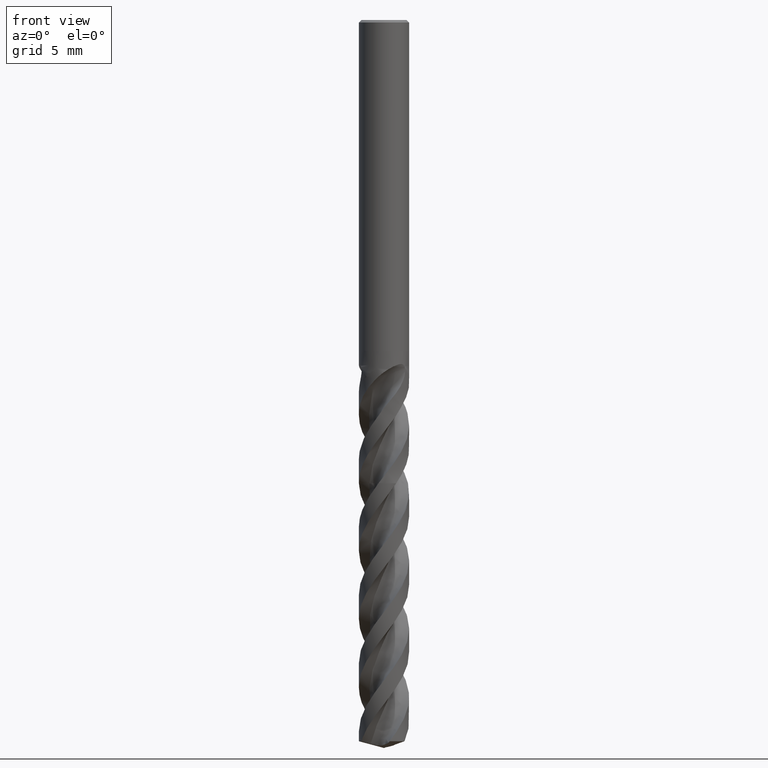
[diagram: clean part render]
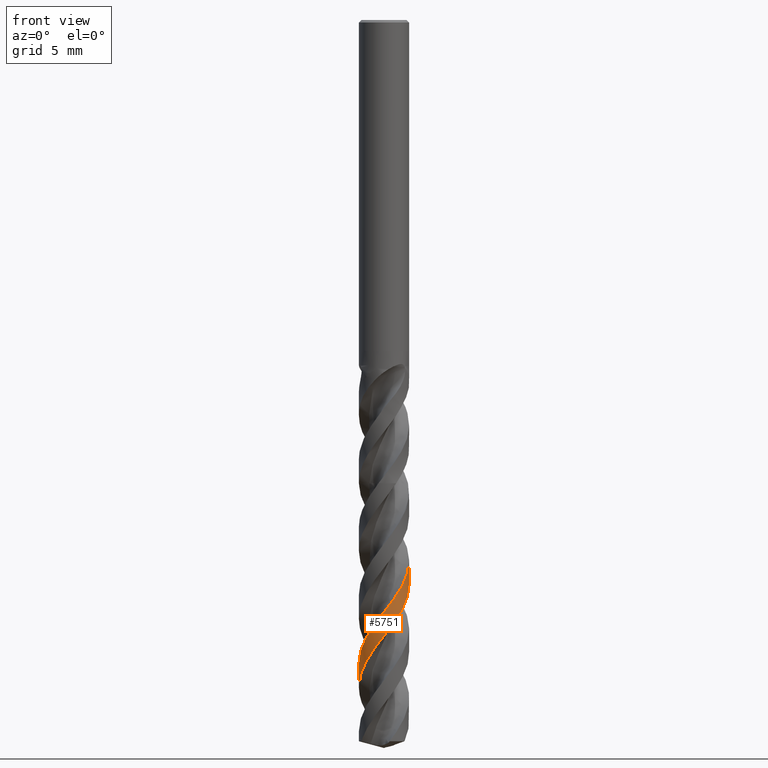
[diagram: same view with one face highlighted and labeled with its STEP entity id]
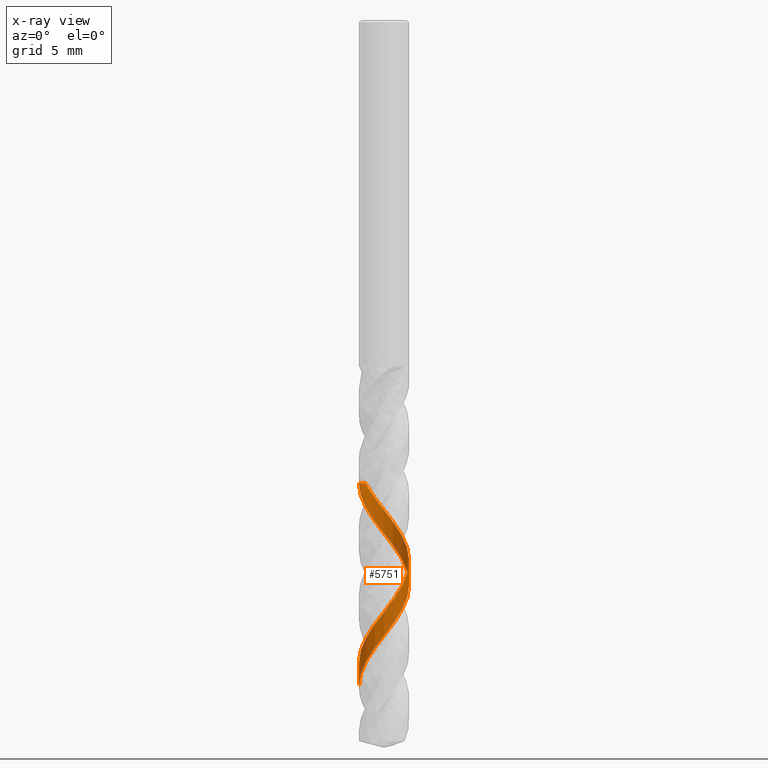
[diagram: x-ray of the same camera — body ghosted, the highlighted face saturated]
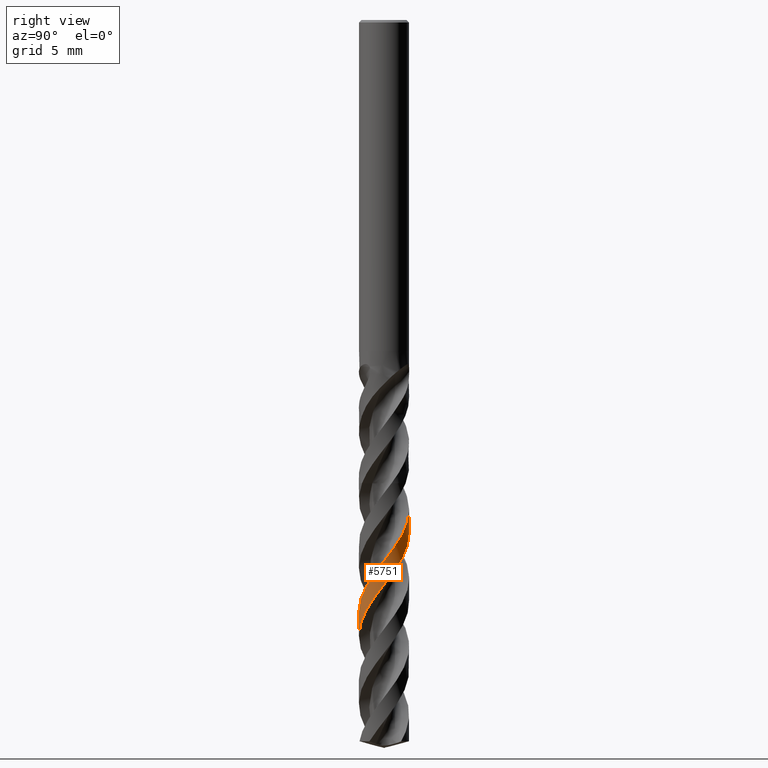
[diagram: same view with one face highlighted and labeled with its STEP entity id]
A machine part, front view. The second image highlights one B-rep face of the part: STEP entity #5751.
The next image is the same camera in x-ray: the body ghosted, the highlighted face saturated — about 0% of this face is hidden behind the body in this view.
A second angle (right view) of the same face is appended — the face is thin or edge-on in the first view.
In plain terms, the highlighted face is a freeform B-spline surface patch.
Its self-contained STEP definition (entity closure, byte-faithful):
#3483 = VERTEX_POINT('', #3484);
#3484 = CARTESIAN_POINT('', (-1.39811417860882, 1.28657558797492, -35.));
#3490 = EDGE_CURVE('', #3491, #3483, #3493, .T.);
#3491 = VERTEX_POINT('', #3492);
#3492 = CARTESIAN_POINT('', (-1.89974373477414, 0.0312045892812388, -34.9999999998437));
#3493 = CIRCLE('', #3494, 1.9);
#3494 = AXIS2_PLACEMENT_3D('', #3495, #3496, #3497);
#3495 = CARTESIAN_POINT('', (1.31228980982913E-31, 2.14313189850787E-15, -35.));
#3496 = DIRECTION('', (3.74939945665464E-33, 6.12323399573677E-17, -1.));
#3497 = DIRECTION('', (-1., 6.12323399573677E-17, 0.));
#5280 = EDGE_CURVE('', #5281, #3491, #5283, .T.);
#5281 = VERTEX_POINT('', #5282);
#5282 = CARTESIAN_POINT('', (-1.9, 3.20183785493939E-15, -50.3899803791368));
#5283 = B_SPLINE_CURVE_WITH_KNOTS('', 3, (#5284, #5285, #5286, #5287, #5288, #5289, #5290, #5291, #5292, #5293, #5294, #5295, #5296, #5297, #5298, #5299, #5300, #5301, #5302, #5303, #5304, #5305, #5306, #5307, #5308, #5309, #5310, #5311, #5312, #5313, #5314, #5315, #5316, #5317, #5318, #5319, #5320, #5321, #5322, #5323, #5324, #5325, #5326, #5327, #5328, #5329, #5330, #5331, #5332, #5333, #5334, #5335, #5336, #5337, #5338, #5339, #5340, #5341, #5342, #5343, #5344, #5345, #5346, #5347, #5348, #5349, #5350, #5351, #5352, #5353, #5354, #5355, #5356, #5357, #5358, #5359, #5360, #5361, #5362, #5363, #5364, #5365, #5366, #5367, #5368, #5369, #5370, #5371, #5372, #5373, #5374, #5375, #5376, #5377, #5378, #5379, #5380, #5381, #5382, #5383, #5384, #5385, #5386, #5387, #5388, #5389, #5390, #5391, #5392, #5393, #5394, #5395, #5396, #5397, #5398, #5399, #5400, #5401, #5402, #5403, #5404, #5405, #5406, #5407, #5408, #5409, #5410, #5411, #5412, #5413, #5414, #5415, #5416, #5417, #5418, #5419, #5420, #5421, #5422, #5423, #5424, #5425, #5426, #5427, #5428, #5429, #5430, #5431, #5432, #5433, #5434, #5435, #5436, #5437, #5438, #5439, #5440, #5441, #5442, #5443, #5444, #5445, #5446, #5447, #5448, #5449, #5450, #5451, #5452, #5453, #5454, #5455, #5456, #5457, #5458, #5459, #5460, #5461, #5462, #5463, #5464, #5465, #5466, #5467, #5468, #5469, #5470, #5471, #5472, #5473, #5474, #5475, #5476, #5477, #5478, #5479, #5480, #5481, #5482, #5483, #5484, #5485, #5486, #5487, #5488, #5489, #5490, #5491, #5492, #5493, #5494, #5495, #5496, #5497), .UNSPECIFIED., .F., .U., (4, 3, 3, 3, 3, 3, 3, 3, 3, 3, 3, 3, 3, 3, 3, 3, 3, 3, 3, 3, 3, 3, 3, 3, 3, 3, 3, 3, 3, 3, 3, 3, 3, 3, 3, 3, 3, 3, 3, 3, 3, 3, 3, 3, 3, 3, 3, 3, 3, 3, 3, 3, 3, 3, 3, 3, 3, 3, 3, 3, 3, 3, 3, 3, 3, 3, 3, 3, 3, 3, 3, 4), (0., 0.296597883397819, 0.593047555842325, 0.889354802472602, 1.18552446057521, 1.48156052446931, 1.77746622766253, 2.07324410628319, 2.36889604675509, 2.66442331988133, 2.95982660286872, 3.25510599180677, 3.55026105248241, 3.84529082581789, 4.14019376941951, 4.43496772691302, 4.72960988498536, 4.86077255606335, 4.89968474925953, 5.19627638119132, 5.4927196811879, 5.78902039594951, 6.08518332677794, 6.38121243366968, 6.67711091678459, 6.97288127925713, 7.26852537428579, 7.56404443864139, 7.85943911425807, 8.15470947126052, 8.44985506240897, 8.74487488113444, 9.03976733359273, 9.33453020705703, 9.62916062583236, 9.76032080227562, 9.84798921662365, 10.1445478451883, 10.4409590837638, 10.7372284597297, 11.0333605820444, 11.3293592397402, 11.6252274792756, 11.9209676638771, 12.2165815176204, 12.5120701562464, 12.8074341061006, 13.1026733122776, 13.3977871491565, 13.6927744491314, 13.9876334561822, 14.2823617877787, 14.5769563873929, 14.6353002366761, 14.693726391582, 14.9903020270279, 15.2867292206948, 15.5830136217124, 15.8791599408288, 16.1751720522427, 16.4710530731201, 16.7668054246582, 17.062430877551, 17.3579305844418, 17.6533051192015, 17.9485545075566, 18.2436782122128, 18.5386751213256, 18.8335435262081, 19.1282810873866, 19.4228847877609, 19.4555960733218), .UNSPECIFIED.);
#5284 = CARTESIAN_POINT('', (-1.9, 3.11249959592658E-15, -50.3899803791368));
#5285 = CARTESIAN_POINT('', (-1.9, -0.0603973466120437, -50.3117075307608));
#5286 = CARTESIAN_POINT('', (-1.89711632268117, -0.1208216689266, -50.2334025913672));
#5287 = CARTESIAN_POINT('', (-1.89136404808751, -0.180947610103469, -50.1551321575798));
#5288 = CARTESIAN_POINT('', (-1.88561464792468, -0.241043506146642, -50.0769008357897));
#5289 = CARTESIAN_POINT('', (-1.87699470840892, -0.300891692167137, -49.9986373507355));
#5290 = CARTESIAN_POINT('', (-1.86555012531124, -0.36017041792916, -49.9204084160486));
#5291 = CARTESIAN_POINT('', (-1.85411104063105, -0.419420663913439, -49.842217065548));
#5292 = CARTESIAN_POINT('', (-1.83984048069851, -0.47815146078953, -49.7639935554103));
#5293 = CARTESIAN_POINT('', (-1.82281464527603, -0.536047357019148, -49.6858045681515));
#5294 = CARTESIAN_POINT('', (-1.80579671570013, -0.593916369629784, -49.6076518874891));
#5295 = CARTESIAN_POINT('', (-1.78601186735749, -0.650999545767201, -49.529467114124));
#5296 = CARTESIAN_POINT('', (-1.76356586798093, -0.706990402546371, -49.4513167775194));
#5297 = CARTESIAN_POINT('', (-1.74112999339413, -0.762956003348128, -49.3732016924406));
#5298 = CARTESIAN_POINT('', (-1.71601659716161, -0.817877080812481, -49.2950546287063));
#5299 = CARTESIAN_POINT('', (-1.68836004285437, -0.871458757310289, -49.2169418742678));
#5300 = CARTESIAN_POINT('', (-1.6607156672248, -0.92501683889601, -49.1388635171027));
#5301 = CARTESIAN_POINT('', (-1.63050714578583, -0.977281684095713, -49.0607533225109));
#5302 = CARTESIAN_POINT('', (-1.59789621593187, -1.02797260815189, -48.9826772894592));
#5303 = CARTESIAN_POINT('', (-1.5652993732622, -1.07864163487512, -48.9046349834883));
#5304 = CARTESIAN_POINT('', (-1.53027467659035, -1.12778086594785, -48.8265609847222));
#5305 = CARTESIAN_POINT('', (-1.49300975053711, -1.17512632716705, -48.748521004388));
#5306 = CARTESIAN_POINT('', (-1.45576069137635, -1.22245162934066, -48.6705142524031));
#5307 = CARTESIAN_POINT('', (-1.41624173307592, -1.2680248004805, -48.5924759279151));
#5308 = CARTESIAN_POINT('', (-1.37466462191501, -1.3116009977334, -48.5144715123355));
#5309 = CARTESIAN_POINT('', (-1.33310504254529, -1.35515882024188, -48.436499988823));
#5310 = CARTESIAN_POINT('', (-1.2894537506212, -1.39675834531309, -48.3584969569361));
#5311 = CARTESIAN_POINT('', (-1.2439445568901, -1.43617615193384, -48.2805277910749));
#5312 = CARTESIAN_POINT('', (-1.19845445679862, -1.47557742059088, -48.2025913376182));
#5313 = CARTESIAN_POINT('', (-1.15106946537053, -1.51283220077472, -48.124623347721));
#5314 = CARTESIAN_POINT('', (-1.10204309966219, -1.54774061343848, -48.0466892849099));
#5315 = CARTESIAN_POINT('', (-1.05303729592904, -1.58263438528798, -47.9687879081492));
#5316 = CARTESIAN_POINT('', (-1.00235025844945, -1.61521313671231, -47.8908548778824));
#5317 = CARTESIAN_POINT('', (-0.950252688659541, -1.64530235145255, -47.8129558984737));
#5318 = CARTESIAN_POINT('', (-0.898177054705898, -1.6753788970397, -47.7350897186612));
#5319 = CARTESIAN_POINT('', (-0.844648617808613, -1.70299311557896, -47.6571917805136));
#5320 = CARTESIAN_POINT('', (-0.789952808119395, -1.72799726878959, -47.5793279703746));
#5321 = CARTESIAN_POINT('', (-0.735280215692649, -1.75299080824404, -47.5014972118445));
#5322 = CARTESIAN_POINT('', (-0.679395844214057, -1.77539725731334, -47.4236346714647));
#5323 = CARTESIAN_POINT('', (-0.62259740278839, -1.79509678681712, -47.3458062580193));
#5324 = CARTESIAN_POINT('', (-0.565823378326233, -1.81478784773126, -47.2680113020681));
#5325 = CARTESIAN_POINT('', (-0.508088987332954, -1.83179064589652, -47.1901846105349));
#5326 = CARTESIAN_POINT('', (-0.449701659736578, -1.84601419746171, -47.1123919793799));
#5327 = CARTESIAN_POINT('', (-0.391339869878339, -1.86023152785957, -47.0346333735507));
#5328 = CARTESIAN_POINT('', (-0.332277230224785, -1.87168384951152, -46.9568431325556));
#5329 = CARTESIAN_POINT('', (-0.272828226239173, -1.88030975080366, -46.8790868367873));
#5330 = CARTESIAN_POINT('', (-0.213405803110234, -1.8889317952802, -46.8013653074374));
#5331 = CARTESIAN_POINT('', (-0.153547806930072, -1.89473713027989, -46.7236122775974));
#5332 = CARTESIAN_POINT('', (-0.093573009370634, -1.89769441478802, -46.6458930504269));
#5333 = CARTESIAN_POINT('', (-0.0668746757149105, -1.89901087723102, -46.6112956204579));
#5334 = CARTESIAN_POINT('', (-0.0401459855887426, -1.89976389798682, -46.5766955788446));
#5335 = CARTESIAN_POINT('', (-0.0134152424320742, -1.89995263921775, -46.5420986425517));
#5336 = CARTESIAN_POINT('', (-0.0054849995249945, -1.9000086333141, -46.5318347263173));
#5337 = CARTESIAN_POINT('', (0.00244567702330259, -1.90001497659861, -46.5215707541682));
#5338 = CARTESIAN_POINT('', (0.010376046464451, -1.89997166759395, -46.5113068743352));
#5339 = CARTESIAN_POINT('', (0.0708219124302595, -1.8996415631379, -46.4330748185295));
#5340 = CARTESIAN_POINT('', (0.131279019773841, -1.89642294998161, -46.354810529619));
#5341 = CARTESIAN_POINT('', (0.191421314641239, -1.89033274327594, -46.2765808678068));
#5342 = CARTESIAN_POINT('', (0.251533531037008, -1.88424558241529, -46.1983903303524));
#5343 = CARTESIAN_POINT('', (0.311381762324105, -1.87528459199328, -46.1201675322566));
#5344 = CARTESIAN_POINT('', (0.370643635672597, -1.86349759735166, -46.041979365893));
#5345 = CARTESIAN_POINT('', (0.429877004858116, -1.85171627209573, -45.9638288069844));
#5346 = CARTESIAN_POINT('', (0.488574243087134, -1.83710178492602, -45.8856460215988));
#5347 = CARTESIAN_POINT('', (0.546419398961808, -1.819732354067, -45.807497814191));
#5348 = CARTESIAN_POINT('', (0.604237656038421, -1.80237100023372, -45.7293859467812));
#5349 = CARTESIAN_POINT('', (0.661253130909745, -1.78224269652014, -45.6512419371889));
#5350 = CARTESIAN_POINT('', (0.717159007714757, -1.75945530140824, -45.5731324060725));
#5351 = CARTESIAN_POINT('', (0.773039622936567, -1.73667820298984, -45.4950581694642));
#5352 = CARTESIAN_POINT('', (0.82785865619203, -1.7112252476001, -45.4169519098412));
#5353 = CARTESIAN_POINT('', (0.881321102058187, -1.68323293547475, -45.3388799998108));
#5354 = CARTESIAN_POINT('', (0.934759957451533, -1.65525297504538, -45.2608425392569));
#5355 = CARTESIAN_POINT('', (0.986888563036032, -1.62471225644273, -45.182773190664));
#5356 = CARTESIAN_POINT('', (1.03742634248768, -1.59177466492988, -45.1047380536134));
#5357 = CARTESIAN_POINT('', (1.08794223966166, -1.55885133501559, -45.0267367048803));
#5358 = CARTESIAN_POINT('', (1.13691153699143, -1.52350527461663, -44.9487035958913));
#5359 = CARTESIAN_POINT('', (1.18407062760262, -1.48592622591054, -44.8707045754155));
#5360 = CARTESIAN_POINT('', (1.23120958550755, -1.44836322009117, -44.7927388535326));
#5361 = CARTESIAN_POINT('', (1.27657998597992, -1.4085371721579, -44.714741464921));
#5362 = CARTESIAN_POINT('', (1.31993762582499, -1.3666618689096, -44.636778085106));
#5363 = CARTESIAN_POINT('', (1.36327692931569, -1.32480427512156, -44.5588476767388));
#5364 = CARTESIAN_POINT('', (1.40464205834341, -1.28086354078426, -44.4808856296528));
#5365 = CARTESIAN_POINT('', (1.44381050747631, -1.23507538980461, -44.4029575874892));
#5366 = CARTESIAN_POINT('', (1.48296246997744, -1.18930651179595, -44.325062346495));
#5367 = CARTESIAN_POINT('', (1.51995279622494, -1.14165298424475, -44.2471354029841));
#5368 = CARTESIAN_POINT('', (1.55458277159442, -1.09237008667476, -44.1692425551454));
#5369 = CARTESIAN_POINT('', (1.58919817273184, -1.04310793010667, -44.0913824889772));
#5370 = CARTESIAN_POINT('', (1.6214843399657, -0.992176340874723, -44.0134906102073));
#5371 = CARTESIAN_POINT('', (1.65126807967806, -0.939847715875464, -43.9356329206462));
#5372 = CARTESIAN_POINT('', (1.68103923433529, -0.887541202224097, -43.8578081296842));
#5373 = CARTESIAN_POINT('', (1.70833497175356, -0.833795108919408, -43.7799514725449));
#5374 = CARTESIAN_POINT('', (1.73300899264645, -0.778896547306844, -43.7021290353297));
#5375 = CARTESIAN_POINT('', (1.75767249902894, -0.724021379996346, -43.6243397611256));
#5376 = CARTESIAN_POINT('', (1.77973708298927, -0.66794898834522, -43.5465186333979));
#5377 = CARTESIAN_POINT('', (1.79908449563749, -0.610978704667201, -43.4687316928673));
#5378 = CARTESIAN_POINT('', (1.81842355560033, -0.554033016260116, -43.3909783345967));
#5379 = CARTESIAN_POINT('', (1.83506390886026, -0.496142743036781, -43.3131931911206));
#5380 = CARTESIAN_POINT('', (1.84891630625917, -0.437616832913239, -43.2354421504763));
#5381 = CARTESIAN_POINT('', (1.86276261676198, -0.379116639719694, -43.1577252744962));
#5382 = CARTESIAN_POINT('', (1.87383498606089, -0.319932487403543, -43.0799767225228));
#5383 = CARTESIAN_POINT('', (1.88207389285434, -0.260380225509291, -43.0022621534353));
#5384 = CARTESIAN_POINT('', (1.8903090974114, -0.200854724028363, -42.9245825061782));
#5385 = CARTESIAN_POINT('', (1.89572028682086, -0.140911517679723, -42.8468713138857));
#5386 = CARTESIAN_POINT('', (1.89827815552437, -0.0808705401203072, -42.7691939694406));
#5387 = CARTESIAN_POINT('', (1.89941683805371, -0.0541421892485537, -42.7346144638844));
#5388 = CARTESIAN_POINT('', (1.89999096742588, -0.0273872123462829, -42.7000323333456));
#5389 = CARTESIAN_POINT('', (1.89999989422989, -0.000633976647764424, -42.6654533246451));
#5390 = CARTESIAN_POINT('', (1.90000586097052, 0.0172480803604663, -42.6423404641359));
#5391 = CARTESIAN_POINT('', (1.89975934999109, 0.0351310202751385, -42.619226842983));
#5392 = CARTESIAN_POINT('', (1.89926046827714, 0.0530063547105378, -42.5961141656127));
#5393 = CARTESIAN_POINT('', (1.89757288583362, 0.113473795632336, -42.5179302044406));
#5394 = CARTESIAN_POINT('', (1.8929930163899, 0.173887824555277, -42.4397140686018));
#5395 = CARTESIAN_POINT('', (1.88554518410402, 0.233921693526354, -42.3615325138635));
#5396 = CARTESIAN_POINT('', (1.87810105339959, 0.293925725593551, -42.2833898154504));
#5397 = CARTESIAN_POINT('', (1.8677855116327, 0.353600840421559, -42.2052148605735));
#5398 = CARTESIAN_POINT('', (1.854653810658, 0.41262482064437, -42.127074547996));
#5399 = CARTESIAN_POINT('', (1.84152839452384, 0.471620551952225, -42.0489716334224));
#5400 = CARTESIAN_POINT('', (1.82557845142151, 0.530015528203547, -41.970836438534));
#5401 = CARTESIAN_POINT('', (1.80688955170894, 0.587494806721798, -41.8927358899143));
#5402 = CARTESIAN_POINT('', (1.78820931006206, 0.644947456632856, -41.814671523183));
#5403 = CARTESIAN_POINT('', (1.76677693109782, 0.701533606339098, -41.7365749063166));
#5404 = CARTESIAN_POINT('', (1.74270746384052, 0.756948277938834, -41.6585128881489));
#5405 = CARTESIAN_POINT('', (1.7186488445191, 0.812337974544385, -41.5804860519718));
#5406 = CARTESIAN_POINT('', (1.69193525821193, 0.866603878376434, -41.502427040864));
#5407 = CARTESIAN_POINT('', (1.66271015806483, 0.919453604195458, -41.4244025394572));
#5408 = CARTESIAN_POINT('', (1.63349793461058, 0.972280044219639, -41.3464124159495));
#5409 = CARTESIAN_POINT('', (1.60175175666716, 1.02373612788652, -41.2683902249394));
#5410 = CARTESIAN_POINT('', (1.56764216595529, 1.07354461459177, -41.1904024271558));
#5411 = CARTESIAN_POINT('', (1.53354733823858, 1.12333154365203, -41.112448383324));
#5412 = CARTESIAN_POINT('', (1.49706226891174, 1.17151445603243, -41.034462394904));
#5413 = CARTESIAN_POINT('', (1.45838302382443, 1.21783371435542, -40.9565106736921));
#5414 = CARTESIAN_POINT('', (1.41972030128793, 1.26413318655545, -40.8785922509913));
#5415 = CARTESIAN_POINT('', (1.37883241716875, 1.30860994004486, -40.8006420012783));
#5416 = CARTESIAN_POINT('', (1.33593913955862, 1.35102428379189, -40.7227259052745));
#5417 = CARTESIAN_POINT('', (1.29306403053808, 1.39342066181451, -40.6448428127073));
#5418 = CARTESIAN_POINT('', (1.24814869545133, 1.43379249762829, -40.5669279803073));
#5419 = CARTESIAN_POINT('', (1.20143451730405, 1.47192224680191, -40.4890472269804));
#5420 = CARTESIAN_POINT('', (1.15474005136476, 1.51003590618062, -40.4111993373722));
#5421 = CARTESIAN_POINT('', (1.10620847429145, 1.545941849899, -40.333319735265));
#5422 = CARTESIAN_POINT('', (1.05610042514765, 1.57944670438827, -40.2554742072386));
#5423 = CARTESIAN_POINT('', (1.00601353858078, 1.6129374084751, -40.1776615564046));
#5424 = CARTESIAN_POINT('', (0.954308995875691, 1.64405749134188, -40.0998171385695));
#5425 = CARTESIAN_POINT('', (0.901264099184257, 1.67263953783282, -40.0220068715774));
#5426 = CARTESIAN_POINT('', (0.848241727283987, 1.70120944734795, -39.9442296456528));
#5427 = CARTESIAN_POINT('', (0.7938354326233, 1.72726757797137, -39.8664205625453));
#5428 = CARTESIAN_POINT('', (0.738336567968501, 1.75067390235889, -39.7886457046229));
#5429 = CARTESIAN_POINT('', (0.68286149973947, 1.77407019074181, -39.7109041944752));
#5430 = CARTESIAN_POINT('', (0.626248272057943, 1.79483657651667, -39.633130788486));
#5431 = CARTESIAN_POINT('', (0.568799719544611, 1.81286151678665, -39.5553916268778));
#5432 = CARTESIAN_POINT('', (0.511376151980751, 1.83087861783002, -39.4776862748077));
#5433 = CARTESIAN_POINT('', (0.453069948291436, 1.84617173260294, -39.3999490449136));
#5434 = CARTESIAN_POINT('', (0.394192782023243, 1.85865866974032, -39.322246023896));
#5435 = CARTESIAN_POINT('', (0.335341708905565, 1.8711400729237, -39.244577439261));
#5436 = CARTESIAN_POINT('', (0.27587094616494, 1.88082822585693, -39.1668770435323));
#5437 = CARTESIAN_POINT('', (0.216098280649952, 1.88767092818117, -39.089210775733));
#5438 = CARTESIAN_POINT('', (0.156352736779505, 1.8945105256524, -39.0115797487397));
#5439 = CARTESIAN_POINT('', (0.0962554809827234, 1.89851298407689, -38.9339170137342));
#5440 = CARTESIAN_POINT('', (0.0361276113045001, 1.89965649413306, -38.8562882939799));
#5441 = CARTESIAN_POINT('', (0.0242194114569041, 1.89988296392734, -38.8409140870823));
#5442 = CARTESIAN_POINT('', (0.0123088194006457, 1.89999746118686, -38.8255396757848));
#5443 = CARTESIAN_POINT('', (0.000398338919437425, 1.89999995824371, -38.8101655677333));
#5444 = CARTESIAN_POINT('', (-0.0115289436673, 1.90000245882317, -38.7947697714395));
#5445 = CARTESIAN_POINT('', (-0.0234565105444414, 1.89989264302796, -38.7793737675083));
#5446 = CARTESIAN_POINT('', (-0.0353818442833437, 1.89967053066976, -38.7639780635299));
#5447 = CARTESIAN_POINT('', (-0.0959157513531112, 1.89854307133445, -38.6858282914303));
#5448 = CARTESIAN_POINT('', (-0.156422866371739, 1.89451784944092, -38.6076460655249));
#5449 = CARTESIAN_POINT('', (-0.2165756917128, 1.88761621357712, -38.529498660099));
#5450 = CARTESIAN_POINT('', (-0.27669840941406, 1.8807180321141, -38.4513903689445));
#5451 = CARTESIAN_POINT('', (-0.336518085431246, 1.87094047784981, -38.3732496705937));
#5452 = CARTESIAN_POINT('', (-0.395711163761303, 1.85833599622746, -38.29514373126));
#5453 = CARTESIAN_POINT('', (-0.454875728052643, 1.84573758633997, -38.2170754165243));
#5454 = CARTESIAN_POINT('', (-0.513464413320335, 1.83030429908284, -38.1389747775055));
#5455 = CARTESIAN_POINT('', (-0.571160433877697, 1.81211913481776, -38.0609088029862));
#5456 = CARTESIAN_POINT('', (-0.62882956548585, 1.79394244565986, -37.9828792107339));
#5457 = CARTESIAN_POINT('', (-0.685655821514685, 1.7730010093833, -37.9048174019483));
#5458 = CARTESIAN_POINT('', (-0.741331983902199, 1.74940758248146, -37.8267901427047));
#5459 = CARTESIAN_POINT('', (-0.796982914945088, 1.72582484765788, -37.7487982438844));
#5460 = CARTESIAN_POINT('', (-0.851532183927844, 1.69957243884957, -37.6707742456904));
#5461 = CARTESIAN_POINT('', (-0.904684890099271, 1.67079180319574, -37.5927846782643));
#5462 = CARTESIAN_POINT('', (-0.957814057312325, 1.64202391319935, -37.5148296489325));
#5463 = CARTESIAN_POINT('', (-1.00959327659233, 1.61070546036818, -37.4368426272564));
#5464 = CARTESIAN_POINT('', (-1.05974264625351, 1.57700523896137, -37.3588899345419));
#5465 = CARTESIAN_POINT('', (-1.10987020753295, 1.54331967271969, -37.2809711409989));
#5466 = CARTESIAN_POINT('', (-1.15841222917946, 1.50722558473127, -37.2030204282001));
#5467 = CARTESIAN_POINT('', (-1.20510639709955, 1.4689174829342, -37.1251039846276));
#5468 = CARTESIAN_POINT('', (-1.25178052992397, 1.43062581801819, -37.0472209727119));
#5469 = CARTESIAN_POINT('', (-1.2966483054024, 1.39008930215621, -36.9693060524489));
#5470 = CARTESIAN_POINT('', (-1.33946746132309, 1.3475262224004, -36.8914254133276));
#5471 = CARTESIAN_POINT('', (-1.38226840386731, 1.30498124709757, -36.8135779011881));
#5472 = CARTESIAN_POINT('', (-1.42305891670236, 1.26037521648839, -36.7356984215243));
#5473 = CARTESIAN_POINT('', (-1.4616190323304, 1.21394802373477, -36.6578532931714));
#5474 = CARTESIAN_POINT('', (-1.50016281409503, 1.1675404972973, -36.580041139608));
#5475 = CARTESIAN_POINT('', (-1.536510715687, 1.11927408197368, -36.50219695));
#5476 = CARTESIAN_POINT('', (-1.57046696000731, 1.06940802667896, -36.4243871635594));
#5477 = CARTESIAN_POINT('', (-1.60440881750212, 1.01956309899275, -36.3466103441279));
#5478 = CARTESIAN_POINT('', (-1.63598965155237, 0.968077885378921, -36.2688014696178));
#5479 = CARTESIAN_POINT('', (-1.66503948287526, 0.915228671134437, -36.1910270007931));
#5480 = CARTESIAN_POINT('', (-1.69407694807515, 0.862401954090591, -36.1132856395151));
#5481 = CARTESIAN_POINT('', (-1.7206099913949, 0.808167963411289, -36.0355122516039));
#5482 = CARTESIAN_POINT('', (-1.74449583208207, 0.752817568769679, -35.9577732260125));
#5483 = CARTESIAN_POINT('', (-1.76837141057036, 0.697490954608104, -35.8800675998459));
#5484 = CARTESIAN_POINT('', (-1.7896221490438, 0.641002341845887, -35.802330016331));
#5485 = CARTESIAN_POINT('', (-1.80813365148061, 0.583654605381844, -35.724626713823));
#5486 = CARTESIAN_POINT('', (-1.82663709008252, 0.526331850287105, -35.6469572598156));
#5487 = CARTESIAN_POINT('', (-1.84241927615101, 0.468102388478355, -35.5692559475355));
#5488 = CARTESIAN_POINT('', (-1.85539515791534, 0.409278399117745, -35.491588809403));
#5489 = CARTESIAN_POINT('', (-1.86836528181479, 0.350480512074401, -35.4139561349698));
#5490 = CARTESIAN_POINT('', (-1.87854255530414, 0.291038902529495, -35.3362917154774));
#5491 = CARTESIAN_POINT('', (-1.88587198726861, 0.231272237062185, -35.2586613547905));
#5492 = CARTESIAN_POINT('', (-1.89319809042878, 0.171532715790106, -35.1810662514439));
#5493 = CARTESIAN_POINT('', (-1.89768514866167, 0.111417765997658, -35.1034395099252));
#5494 = CARTESIAN_POINT('', (-1.89930868390748, 0.0512496169164261, -35.0258467253242));
#5495 = CARTESIAN_POINT('', (-1.89948895294339, 0.0445688538989705, -35.0172312200494));
#5496 = CARTESIAN_POINT('', (-1.89963397209546, 0.0378870308107657, -35.0086156147691));
#5497 = CARTESIAN_POINT('', (-1.89974373477414, 0.0312045892812388, -34.9999999998437));
#5751 = ADVANCED_FACE('', (#5752), #5954, .T.);
#5752 = FACE_OUTER_BOUND('', #5753, .T.);
#5753 = EDGE_LOOP('', (#5754, #5755, #5947, #5953));
#5754 = ORIENTED_EDGE('', *, *, #3490, .T.);
#5755 = ORIENTED_EDGE('', *, *, #5756, .F.);
#5756 = EDGE_CURVE('', #5757, #3483, #5759, .T.);
#5757 = VERTEX_POINT('', #5758);
#5758 = CARTESIAN_POINT('', (-1.9, 3.09188457602421E-15, -48.5943070635043));
#5759 = B_SPLINE_CURVE_WITH_KNOTS('', 3, (#5760, #5761, #5762, #5763, #5764, #5765, #5766, #5767, #5768, #5769, #5770, #5771, #5772, #5773, #5774, #5775, #5776, #5777, #5778, #5779, #5780, #5781, #5782, #5783, #5784, #5785, #5786, #5787, #5788, #5789, #5790, #5791, #5792, #5793, #5794, #5795, #5796, #5797, #5798, #5799, #5800, #5801, #5802, #5803, #5804, #5805, #5806, #5807, #5808, #5809, #5810, #5811, #5812, #5813, #5814, #5815, #5816, #5817, #5818, #5819, #5820, #5821, #5822, #5823, #5824, #5825, #5826, #5827, #5828, #5829, #5830, #5831, #5832, #5833, #5834, #5835, #5836, #5837, #5838, #5839, #5840, #5841, #5842, #5843, #5844, #5845, #5846, #5847, #5848, #5849, #5850, #5851, #5852, #5853, #5854, #5855, #5856, #5857, #5858, #5859, #5860, #5861, #5862, #5863, #5864, #5865, #5866, #5867, #5868, #5869, #5870, #5871, #5872, #5873, #5874, #5875, #5876, #5877, #5878, #5879, #5880, #5881, #5882, #5883, #5884, #5885, #5886, #5887, #5888, #5889, #5890, #5891, #5892, #5893, #5894, #5895, #5896, #5897, #5898, #5899, #5900, #5901, #5902, #5903, #5904, #5905, #5906, #5907, #5908, #5909, #5910, #5911, #5912, #5913, #5914, #5915, #5916, #5917, #5918, #5919, #5920, #5921, #5922, #5923, #5924, #5925, #5926, #5927, #5928, #5929, #5930, #5931, #5932, #5933, #5934, #5935, #5936, #5937, #5938, #5939, #5940, #5941, #5942, #5943, #5944, #5945, #5946), .UNSPECIFIED., .F., .U., (4, 3, 3, 3, 3, 3, 3, 3, 3, 3, 3, 3, 3, 3, 3, 3, 3, 3, 3, 3, 3, 3, 3, 3, 3, 3, 3, 3, 3, 3, 3, 3, 3, 3, 3, 3, 3, 3, 3, 3, 3, 3, 3, 3, 3, 3, 3, 3, 3, 3, 3, 3, 3, 3, 3, 3, 3, 3, 3, 3, 3, 3, 4), (0., 0.296596326348724, 0.59304486957373, 0.889351356673403, 1.18552057155374, 1.48155645875699, 1.77746220464324, 2.07324029998309, 2.368892586891, 2.66442029223663, 2.95982404964174, 3.25510393840323, 3.55025952862068, 3.84528982810309, 4.14019326017725, 4.43496763247522, 4.72961009338568, 4.86077279458118, 4.89968419334841, 5.19627667911663, 5.49272084771341, 5.78902241136007, 6.08518613750454, 6.3812159522878, 6.67711502143151, 6.97288581249319, 7.26853014140747, 7.56404920546208, 7.85944360892706, 8.15471342372706, 8.44985817610124, 8.74487682234002, 9.03976772781478, 9.33452863458436, 9.62915661640711, 9.76031622230733, 10.0569212176773, 10.3533767111042, 10.6496885075094, 10.945861449305, 11.2418995221308, 11.5378059374836, 11.833583196304, 12.1292331381582, 12.4247570095855, 12.7201554915094, 13.0154286967837, 13.310576170644, 13.6055968805842, 13.900489195384, 14.1952508525911, 14.4898789132861, 14.6210384605724, 14.6469869869487, 14.9435875471061, 15.2400381046506, 15.5363444439712, 15.8325113842522, 16.1285428846587, 16.4244421264233, 16.720211578405, 17.0158530721891, 17.1898999405243), .UNSPECIFIED.);
#5760 = CARTESIAN_POINT('', (-1.9, 3.08668040559628E-15, -48.5943070635043));
#5761 = CARTESIAN_POINT('', (-1.9, -0.0603653661374144, -48.5160102039508));
#5762 = CARTESIAN_POINT('', (-1.89711939767785, -0.120758578627939, -48.4376820268731));
#5763 = CARTESIAN_POINT('', (-1.89137287326705, -0.180855340727578, -48.3593894200243));
#5764 = CARTESIAN_POINT('', (-1.88562921213962, -0.240922158804182, -48.2811358235239));
#5765 = CARTESIAN_POINT('', (-1.87701772803277, -0.300742614568275, -48.2028508842585));
#5766 = CARTESIAN_POINT('', (-1.86558383311564, -0.359995779999728, -48.1246015003911));
#5767 = CARTESIAN_POINT('', (-1.85415541724317, -0.419220551717374, -48.0463896130962));
#5768 = CARTESIAN_POINT('', (-1.83989782027306, -0.477927658981623, -47.9681464598371));
#5769 = CARTESIAN_POINT('', (-1.82288673095319, -0.535802170688777, -47.8899387535454));
#5770 = CARTESIAN_POINT('', (-1.80588352249347, -0.593649870419106, -47.8117672791483));
#5771 = CARTESIAN_POINT('', (-1.78611521235708, -0.650713887862779, -47.7335646894061));
#5772 = CARTESIAN_POINT('', (-1.76368708948537, -0.706687944132788, -47.6553973739823));
#5773 = CARTESIAN_POINT('', (-1.74126906317122, -0.762636802338568, -47.5772652474508));
#5774 = CARTESIAN_POINT('', (-1.7161748175867, -0.817543568407817, -47.4991021977542));
#5775 = CARTESIAN_POINT('', (-1.6885383159921, -0.871113285070646, -47.4209742189568));
#5776 = CARTESIAN_POINT('', (-1.66091396377151, -0.924659451772883, -47.3428805862589));
#5777 = CARTESIAN_POINT('', (-1.6307262409136, -0.976914976815917, -47.2647562277475));
#5778 = CARTESIAN_POINT('', (-1.59813657988466, -1.02759888674257, -47.1866667435603));
#5779 = CARTESIAN_POINT('', (-1.5655609776839, -1.07826093217727, -47.1086109463342));
#5780 = CARTESIAN_POINT('', (-1.53055778924206, -1.12739581172889, -47.0305245851891));
#5781 = CARTESIAN_POINT('', (-1.49331440259474, -1.17473916041099, -46.9524729505259));
#5782 = CARTESIAN_POINT('', (-1.45608685732359, -1.22206237172473, -46.8744545149195));
#5783 = CARTESIAN_POINT('', (-1.41658923126235, -1.26763598098582, -46.7964055968494));
#5784 = CARTESIAN_POINT('', (-1.37503301897319, -1.31121477902496, -46.7183913524316));
#5785 = CARTESIAN_POINT('', (-1.33349431758477, -1.35477521388889, -46.640409981551));
#5786 = CARTESIAN_POINT('', (-1.28986337320195, -1.3963796454646, -46.5623980797612));
#5787 = CARTESIAN_POINT('', (-1.24437358005858, -1.43580444115909, -46.4844209446047));
#5788 = CARTESIAN_POINT('', (-1.19890286589181, -1.47521270161122, -46.4064765140142));
#5789 = CARTESIAN_POINT('', (-1.15153648666152, -1.51247643985834, -46.3285013584113));
#5790 = CARTESIAN_POINT('', (-1.10252727382491, -1.5473957510838, -46.2505611899521));
#5791 = CARTESIAN_POINT('', (-1.05353861152148, -1.58230041995077, -46.1726537033484));
#5792 = CARTESIAN_POINT('', (-1.00286768515436, -1.61489172637202, -46.0947152809838));
#5793 = CARTESIAN_POINT('', (-0.950784418211569, -1.64499513375757, -46.0168120103193));
#5794 = CARTESIAN_POINT('', (-0.898723075803764, -1.67508586906537, -45.9389415331618));
#5795 = CARTESIAN_POINT('', (-0.845207566534854, -1.70271567066925, -45.8610400445163));
#5796 = CARTESIAN_POINT('', (-0.790522679862089, -1.72773663867606, -45.7831737407194));
#5797 = CARTESIAN_POINT('', (-0.735861006402535, -1.75274698552042, -45.7053404904263));
#5798 = CARTESIAN_POINT('', (-0.679985866476517, -1.77517133869052, -45.6274762701805));
#5799 = CARTESIAN_POINT('', (-0.62319456402583, -1.79488956077211, -45.5496471591118));
#5800 = CARTESIAN_POINT('', (-0.566427682678216, -1.81459930372549, -45.4718515157161));
#5801 = CARTESIAN_POINT('', (-0.508698457915587, -1.83162154167265, -45.3940250318265));
#5802 = CARTESIAN_POINT('', (-0.450314208020472, -1.8458648688501, -45.3162335032925));
#5803 = CARTESIAN_POINT('', (-0.391955509059679, -1.86010196266293, -45.2384760189782));
#5804 = CARTESIAN_POINT('', (-0.332893755719846, -1.87157442220163, -45.1606878776482));
#5805 = CARTESIAN_POINT('', (-0.273443623046787, -1.88022035544116, -45.0829344949881));
#5806 = CARTESIAN_POINT('', (-0.214020094279038, -1.88886241962978, -45.0052159069287));
#5807 = CARTESIAN_POINT('', (-0.154158651561843, -1.894687728527, -44.9274668606984));
#5808 = CARTESIAN_POINT('', (-0.094178508661222, -1.89766446151759, -44.8497523736775));
#5809 = CARTESIAN_POINT('', (-0.0674778167900377, -1.89898958057402, -44.8151570814437));
#5810 = CARTESIAN_POINT('', (-0.0407463311229528, -1.89975116298068, -44.7805593701004));
#5811 = CARTESIAN_POINT('', (-0.0140123476589463, -1.89994832932716, -44.7459649719233));
#5812 = CARTESIAN_POINT('', (-0.00608130718995079, -1.90000682170542, -44.7357020205636));
#5813 = CARTESIAN_POINT('', (0.00185020546520144, -1.90001565336035, -44.7254390309095));
#5814 = CARTESIAN_POINT('', (0.00978144795437588, -1.89997482174788, -44.7151761502101));
#5815 = CARTESIAN_POINT('', (0.070235376613355, -1.89966359290946, -44.6369498876189));
#5816 = CARTESIAN_POINT('', (0.130702425512452, -1.89646310533659, -44.558692112375));
#5817 = CARTESIAN_POINT('', (0.190856803341122, -1.89038982239604, -44.4804700657701));
#5818 = CARTESIAN_POINT('', (0.250981099736186, -1.88431957652551, -44.4022871357082));
#5819 = CARTESIAN_POINT('', (0.310843224055877, -1.87537434208889, -44.3240727190615));
#5820 = CARTESIAN_POINT('', (0.370120819112384, -1.86360150763505, -44.245893971641));
#5821 = CARTESIAN_POINT('', (0.429369898585243, -1.85183433652239, -44.1677528322343));
#5822 = CARTESIAN_POINT('', (0.488084550496746, -1.83723244066473, -44.0895803157797));
#5823 = CARTESIAN_POINT('', (0.545948551301232, -1.81987367125636, -44.0114433338973));
#5824 = CARTESIAN_POINT('', (0.603785634160232, -1.80252297703122, -43.9333427008154));
#5825 = CARTESIAN_POINT('', (0.660821465248301, -1.78240338104363, -43.8552108560572));
#5826 = CARTESIAN_POINT('', (0.716748677178952, -1.75962249751537, -43.7771143648244));
#5827 = CARTESIAN_POINT('', (0.77265060144465, -1.73685191443532, -43.6990531851661));
#5828 = CARTESIAN_POINT('', (0.827492220665767, -1.71140316558332, -43.6209609831749));
#5829 = CARTESIAN_POINT('', (0.880977753780485, -1.68341266400841, -43.5429039403851));
#5830 = CARTESIAN_POINT('', (0.934439664273816, -1.65543452482352, -43.4648813725619));
#5831 = CARTESIAN_POINT('', (0.986592254771153, -1.62489301850484, -43.3868279595113));
#5832 = CARTESIAN_POINT('', (1.03715404486673, -1.59195209953584, -43.308809535563));
#5833 = CARTESIAN_POINT('', (1.08769391542914, -1.55902546110487, -43.2308249341401));
#5834 = CARTESIAN_POINT('', (1.13668766820976, -1.52367327089652, -43.1528096116734));
#5835 = CARTESIAN_POINT('', (1.18387078958859, -1.48608544625095, -43.0748291744518));
#5836 = CARTESIAN_POINT('', (1.23103373697111, -1.44851369295916, -42.9968820791755));
#5837 = CARTESIAN_POINT('', (1.27642806121358, -1.40867598808763, -42.9189042888254));
#5838 = CARTESIAN_POINT('', (1.31980879171996, -1.36678628662227, -42.8409613927725));
#5839 = CARTESIAN_POINT('', (1.36317114175838, -1.32491433387407, -42.7630515212189));
#5840 = CARTESIAN_POINT('', (1.40455861748417, -1.2809564026347, -42.6851108369351));
#5841 = CARTESIAN_POINT('', (1.44374821500457, -1.2351482063587, -42.6072052112497));
#5842 = CARTESIAN_POINT('', (1.48292128094063, -1.18935933363048, -42.5293324489644));
#5843 = CARTESIAN_POINT('', (1.51993138174805, -1.14168314473483, -42.4514286632943));
#5844 = CARTESIAN_POINT('', (1.5545794884114, -1.09237475905045, -42.3735601274641));
#5845 = CARTESIAN_POINT('', (1.58921298152317, -1.04308717019185, -42.2957244342904));
#5846 = CARTESIAN_POINT('', (1.62151539833503, -0.992127617594142, -42.2178575884295));
#5847 = CARTESIAN_POINT('', (1.65131321589546, -0.939768409241875, -42.1400260796313));
#5848 = CARTESIAN_POINT('', (1.68109841249986, -0.887431377791147, -42.0622275366048));
#5849 = CARTESIAN_POINT('', (1.70840588714614, -0.833652381487049, -41.9843978318757));
#5850 = CARTESIAN_POINT('', (1.73308893914739, -0.778718645599914, -41.906603438117));
#5851 = CARTESIAN_POINT('', (1.75776144485137, -0.72380838118256, -41.8288422834733));
#5852 = CARTESIAN_POINT('', (1.77983228601303, -0.667698692872857, -41.7510500539517));
#5853 = CARTESIAN_POINT('', (1.79918275130828, -0.610689305125619, -41.6732930217993));
#5854 = CARTESIAN_POINT('', (1.81852483800355, -0.553704601996928, -41.5955696578329));
#5855 = CARTESIAN_POINT('', (1.83516505741883, -0.495773358401286, -41.5178153725481));
#5856 = CARTESIAN_POINT('', (1.84901368113976, -0.437205222930928, -41.4400961140391));
#5857 = CARTESIAN_POINT('', (1.86285619988046, -0.378662906438486, -41.3624111170239));
#5858 = CARTESIAN_POINT('', (1.87392121935871, -0.319434999219145, -41.2846953850321));
#5859 = CARTESIAN_POINT('', (1.88214878244653, -0.25983833576917, -41.2070144876513));
#5860 = CARTESIAN_POINT('', (1.89037263524455, -0.200268547943266, -41.1293686211342));
#5861 = CARTESIAN_POINT('', (1.89576854927524, -0.140279851199294, -41.0516921997601));
#5862 = CARTESIAN_POINT('', (1.89830688360835, -0.0801933641001797, -40.9740504397945));
#5863 = CARTESIAN_POINT('', (1.89943687448265, -0.0534446489269216, -40.9394866397932));
#5864 = CARTESIAN_POINT('', (1.90000146967268, -0.0266692250233516, -40.9049203935637));
#5865 = CARTESIAN_POINT('', (1.89999999712628, 0.000104499400570468, -40.8703574858211));
#5866 = CARTESIAN_POINT('', (1.89999666710242, 0.060650735067323, -40.7921967516483));
#5867 = CARTESIAN_POINT('', (1.89709540647104, 0.121225068405447, -40.7140043924634));
#5868 = CARTESIAN_POINT('', (1.89131114051679, 0.181499778945409, -40.635847828007));
#5869 = CARTESIAN_POINT('', (1.88552979008659, 0.241744108384322, -40.5577306578913));
#5870 = CARTESIAN_POINT('', (1.8768634403705, 0.30174008410676, -40.4795820163193));
#5871 = CARTESIAN_POINT('', (1.86535822098569, 0.361162992845559, -40.4014689997782));
#5872 = CARTESIAN_POINT('', (1.85385857837648, 0.420557098289411, -40.3233938459453));
#5873 = CARTESIAN_POINT('', (1.83951301759515, 0.479429251519911, -40.2452874019816));
#5874 = CARTESIAN_POINT('', (1.82239844052591, 0.537460625505506, -40.1672163953739));
#5875 = CARTESIAN_POINT('', (1.80529188351508, 0.595464805420967, -40.0891819736045));
#5876 = CARTESIAN_POINT('', (1.78540423600363, 0.652678696771276, -40.0111164378037));
#5877 = CARTESIAN_POINT('', (1.76284245393124, 0.708792270427452, -39.9330861680197));
#5878 = CARTESIAN_POINT('', (1.74029094587067, 0.764880291513472, -39.8550914310633));
#5879 = CARTESIAN_POINT('', (1.71504830627709, 0.819917309304822, -39.7770657133619));
#5880 = CARTESIAN_POINT('', (1.68725050964658, 0.873605012403978, -39.6990751456215));
#5881 = CARTESIAN_POINT('', (1.65946507557345, 0.927268838887352, -39.6211192627477));
#5882 = CARTESIAN_POINT('', (1.62910277971499, 0.979630861399594, -39.5431324472859));
#5883 = CARTESIAN_POINT('', (1.59632723141095, 1.03040738072661, -39.4651807647351));
#5884 = CARTESIAN_POINT('', (1.56356598890072, 1.08116173723854, -39.3872631063503));
#5885 = CARTESIAN_POINT('', (1.52836544655106, 1.13037561330147, -39.3093144320916));
#5886 = CARTESIAN_POINT('', (1.49091508991485, 1.17778274510378, -39.2314010196004));
#5887 = CARTESIAN_POINT('', (1.45348085373973, 1.22516947056307, -39.1535211448442));
#5888 = CARTESIAN_POINT('', (1.41376689598375, 1.27079134719339, -39.0756100652721));
#5889 = CARTESIAN_POINT('', (1.37198661676208, 1.31440204025472, -38.9977344310936));
#5890 = CARTESIAN_POINT('', (1.33022415339926, 1.35799413693595, -38.9198920044795));
#5891 = CARTESIAN_POINT('', (1.2863619609832, 1.3996134943744, -38.8420182341493));
#5892 = CARTESIAN_POINT('', (1.2406354123941, 1.43903570960339, -38.7641800088294));
#5893 = CARTESIAN_POINT('', (1.19492826538224, 1.47844119815658, -38.6863748099327));
#5894 = CARTESIAN_POINT('', (1.14732004769713, 1.51568443039184, -38.6085382429322));
#5895 = CARTESIAN_POINT('', (1.09806609386601, 1.55056468858989, -38.5307372120169));
#5896 = CARTESIAN_POINT('', (1.04883302832883, 1.58543015428846, -38.4529691760326));
#5897 = CARTESIAN_POINT('', (0.997914373129653, 1.61796385730892, -38.3751698410524));
#5898 = CARTESIAN_POINT('', (0.94558324501952, 1.6479903903659, -38.2974059470865));
#5899 = CARTESIAN_POINT('', (0.893274400227381, 1.6780041377099, -38.219675166062));
#5900 = CARTESIAN_POINT('', (0.839510291826629, 1.70553808266694, -38.1419132228972));
#5901 = CARTESIAN_POINT('', (0.784579458718034, 1.73044360582994, -38.0641865667118));
#5902 = CARTESIAN_POINT('', (0.729672218044943, 1.75533843223276, -37.9864932936196));
#5903 = CARTESIAN_POINT('', (0.673552790829012, 1.7776281487648, -37.9087690323198));
#5904 = CARTESIAN_POINT('', (0.61652258684184, 1.79719222675647, -37.8310798771612));
#5905 = CARTESIAN_POINT('', (0.559517202810698, 1.81674779032032, -37.7534245328832));
#5906 = CARTESIAN_POINT('', (0.501553267914014, 1.83359673691514, -37.6757383756129));
#5907 = CARTESIAN_POINT('', (0.44294231346539, 1.8476477226306, -37.5980871541877));
#5908 = CARTESIAN_POINT('', (0.384357327703753, 1.86169248279227, -37.5204703375983));
#5909 = CARTESIAN_POINT('', (0.325075712590369, 1.8729537847387, -37.4428228433784));
#5910 = CARTESIAN_POINT('', (0.2654161724356, 1.88137031320522, -37.3652101680009));
#5911 = CARTESIAN_POINT('', (0.205783672115475, 1.88978302700039, -37.2876326694602));
#5912 = CARTESIAN_POINT('', (0.145722414380364, 1.89536076631943, -37.2100245420856));
#5913 = CARTESIAN_POINT('', (0.0855551352416149, 1.89807279071018, -37.1324512182403));
#5914 = CARTESIAN_POINT('', (0.0587704729977497, 1.89928010236435, -37.0979179086396));
#5915 = CARTESIAN_POINT('', (0.0319574889647715, 1.89992043357443, -37.0633820810023));
#5916 = CARTESIAN_POINT('', (0.00514462370192452, 1.89999303494696, -37.0288496297374));
#5917 = CARTESIAN_POINT('', (-0.000160017522393875, 1.90000739835908, -37.0220177502363));
#5918 = CARTESIAN_POINT('', (-0.00546475916160398, 1.8999995463979, -37.015185865877));
#5919 = CARTESIAN_POINT('', (-0.0107693798710001, 1.89996947882254, -37.0083540215129));
#5920 = CARTESIAN_POINT('', (-0.0714030147453775, 1.89962579611911, -36.9302636962317));
#5921 = CARTESIAN_POINT('', (-0.132048801710013, 1.89637557499146, -36.8521417231397));
#5922 = CARTESIAN_POINT('', (-0.192377149050225, 1.89023570819183, -36.7740555704537));
#5923 = CARTESIAN_POINT('', (-0.252674985963472, 1.88409894656523, -36.696008909018));
#5924 = CARTESIAN_POINT('', (-0.312707414871529, 1.87507018862684, -36.6179307771192));
#5925 = CARTESIAN_POINT('', (-0.3721480137527, 1.86319775006841, -36.5398882838975));
#5926 = CARTESIAN_POINT('', (-0.431559695779491, 1.85133108725221, -36.4618837570397));
#5927 = CARTESIAN_POINT('', (-0.490431382293662, 1.83661326255105, -36.3838479279218));
#5928 = CARTESIAN_POINT('', (-0.548442818449751, 1.81912354580192, -36.3058475757361));
#5929 = CARTESIAN_POINT('', (-0.60642696278852, 1.80164205719168, -36.2278839192695));
#5930 = CARTESIAN_POINT('', (-0.663601920370256, 1.78137612776397, -36.1498890829461));
#5931 = CARTESIAN_POINT('', (-0.719656633186895, 1.75843519366229, -36.0719296198774));
#5932 = CARTESIAN_POINT('', (-0.775685711666135, 1.73550475066145, -35.9940058083904));
#5933 = CARTESIAN_POINT('', (-0.83064418329292, 1.70988185620732, -35.9160508520148));
#5934 = CARTESIAN_POINT('', (-0.88423321826862, 1.68170497285057, -35.8381312663975));
#5935 = CARTESIAN_POINT('', (-0.937798311153789, 1.65354067814171, -35.7602464930841));
#5936 = CARTESIAN_POINT('', (-0.990041462094511, 1.62280036202975, -35.6823304801665));
#5937 = CARTESIAN_POINT('', (-1.04067904792541, 1.58964999896489, -35.6044499760836));
#5938 = CARTESIAN_POINT('', (-1.09129442267787, 1.55651417658759, -35.5266036325942));
#5939 = CARTESIAN_POINT('', (-1.14034892914046, 1.52094210309537, -35.4487258693168));
#5940 = CARTESIAN_POINT('', (-1.18757677636152, 1.4831255510734, -35.3708837796695));
#5941 = CARTESIAN_POINT('', (-1.23478419148532, 1.44532535955725, -35.2930753667033));
#5942 = CARTESIAN_POINT('', (-1.2802065353609, 1.40525061031969, -35.2152354232454));
#5943 = CARTESIAN_POINT('', (-1.32359801404579, 1.36311712527355, -35.1374312288529));
#5944 = CARTESIAN_POINT('', (-1.34914297690224, 1.33831275485022, -35.0916271835411));
#5945 = CARTESIAN_POINT('', (-1.3740024181578, 1.31277769725856, -35.0458026741949));
#5946 = CARTESIAN_POINT('', (-1.39811417860882, 1.28657558797492, -35.));
#5947 = ORIENTED_EDGE('', *, *, #5948, .T.);
#5948 = EDGE_CURVE('', #5757, #5281, #5949, .T.);
#5949 = LINE('', #5950, #5951);
#5950 = CARTESIAN_POINT('', (-1.9, 3.09188457602421E-15, -48.5943070635043));
#5951 = VECTOR('', #5952, 1.7956733156325);
#5952 = DIRECTION('', (0., 1.09953278915183E-16, -1.7956733156325));
#5953 = ORIENTED_EDGE('', *, *, #5280, .T.);
#5954 = (
   BOUNDED_SURFACE ()
   B_SPLINE_SURFACE (2, 1, ((#5955, #5956), (#5957, #5958), (#5959, #5960), (#5961, #5962), (#5963, #5964), (#5965, #5966), (#5967, #5968), (#5969, #5970), (#5971, #5972)), .UNSPECIFIED., .F., .F., .U.)
   B_SPLINE_SURFACE_WITH_KNOTS ((3, 2, 2, 2, 3), (2, 2), (0.0345444142076791, 2.9845130209103, 5.96902604182061, 8.95353906273091, 11.9380520836412), (0.339087690609392, 0.860942981151381), .UNSPECIFIED.)
   GEOMETRIC_REPRESENTATION_ITEM ()
   RATIONAL_B_SPLINE_SURFACE (((0.993298259872057, 0.993298259872057), (0.710496890259091, 0.710496890259091), (1., 1.), (0.707106781186548, 0.707106781186548), (1., 1.), (0.707106781186548, 0.707106781186548), (1., 1.), (0.707106781186548, 0.707106781186548), (1., 1.)))
   REPRESENTATION_ITEM ('')
   SURFACE ()
);
#5955 = CARTESIAN_POINT('', (-1.89974373892995, 0.0312045893495007, -34.9999999998437));
#5956 = CARTESIAN_POINT('', (-1.89974373892995, 0.0312045893495017, -50.3899803791368));
#5957 = CARTESIAN_POINT('', (-1.86904749702501, 1.9, -34.9999999998437));
#5958 = CARTESIAN_POINT('', (-1.86904749702501, 1.9, -50.3899803791368));
#5959 = CARTESIAN_POINT('', (1.4791141972894E-31, 1.9, -34.9999999998437));
#5960 = CARTESIAN_POINT('', (1.97215226305253E-31, 1.9, -50.3899803791368));
#5961 = CARTESIAN_POINT('', (1.9, 1.9, -34.9999999998437));
#5962 = CARTESIAN_POINT('', (1.9, 1.9, -50.3899803791368));
#5963 = CARTESIAN_POINT('', (1.9, 2.2594733444173E-15, -34.9999999998437));
#5964 = CARTESIAN_POINT('', (1.9, 3.20183785493939E-15, -50.3899803791368));
#5965 = CARTESIAN_POINT('', (1.9, -1.9, -34.9999999998437));
#5966 = CARTESIAN_POINT('', (1.9, -1.9, -50.3899803791368));
#5967 = CARTESIAN_POINT('', (2.32682891837997E-16, -1.9, -34.9999999998437));
#5968 = CARTESIAN_POINT('', (2.32682891837997E-16, -1.9, -50.3899803791368));
#5969 = CARTESIAN_POINT('', (-1.9, -1.9, -34.9999999998437));
#5970 = CARTESIAN_POINT('', (-1.9, -1.9, -50.3899803791368));
#5971 = CARTESIAN_POINT('', (-1.9, 2.2594733444173E-15, -34.9999999998437));
#5972 = CARTESIAN_POINT('', (-1.9, 3.20183785493939E-15, -50.3899803791368));